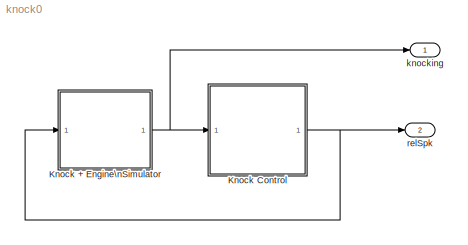
MODEL knock0
KIND model
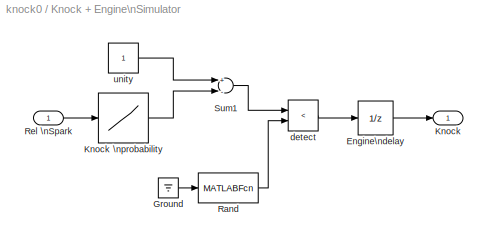
BLOCK [SubSystem] Knock + Engine\nSimulator
  FunctionWithSeparateData = off
  MaskHideContents = off
  MinAlgLoopOccurrences = off
  Opaque = off
  Ports = [1, 1]
  PropExecContextOutsideSubsystem = off
  RTWSystemCode = Auto
  RequestExecContextInheritance = off
  SID = 1
BLOCK [UnitDelay] Knock + Engine\nSimulator/Engine\ndelay
  SID = 3
BLOCK [Ground] Knock + Engine\nSimulator/Ground
  SID = 4
BLOCK [Outport] Knock + Engine\nSimulator/Knock
  IconDisplay = Port number
  SID = 10
BLOCK [Lookup] Knock + Engine\nSimulator/Knock \nprobability
  InputValues = knockGenTheta
  SID = 5
  SaturateOnIntegerOverflow = off
  Table = knockGenP
BLOCK [MATLABFcn] Knock + Engine\nSimulator/Rand
  MATLABFcn = rand(1)
  OutputDimensions = 1
  Ports = [1, 1]
  SID = 6
  SampleTime = [1 0]
BLOCK [Inport] Knock + Engine\nSimulator/Rel \nSpark
  IconDisplay = Port number
  SID = 2
BLOCK [Sum] Knock + Engine\nSimulator/Sum1
  InputSameDT = off
  Inputs = +-
  OutDataTypeStr = Inherit: Inherit via internal rule
  Ports = [2, 1]
  SID = 7
  SaturateOnIntegerOverflow = off
BLOCK [RelationalOperator] Knock + Engine\nSimulator/detect
  InputSameDT = off
  Operator = <
  OutDataTypeStr = boolean
  Ports = [2, 1]
  SID = 8
BLOCK [Constant] Knock + Engine\nSimulator/unity
  SID = 9
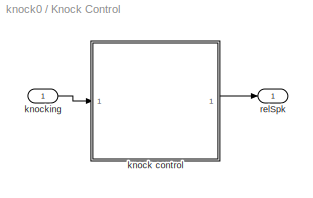
BLOCK [SubSystem] Knock Control
  FunctionWithSeparateData = off
  MaskHideContents = off
  MinAlgLoopOccurrences = off
  Opaque = off
  Ports = [1, 1]
  PropExecContextOutsideSubsystem = off
  RTWSystemCode = Auto
  RequestExecContextInheritance = off
  SID = 11
  TreatAsAtomicUnit = on
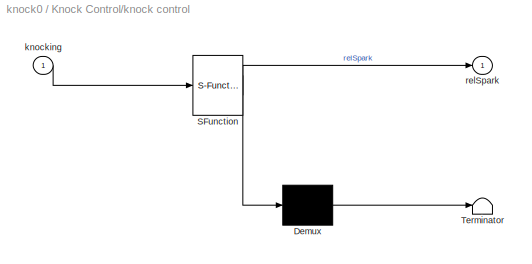
BLOCK [SubSystem] Knock Control/knock control
  ErrorFcn = Stateflow.Translate.translate
  FunctionWithSeparateData = off
  MaskHideContents = off
  MinAlgLoopOccurrences = off
  Opaque = off
  PermitHierarchicalResolution = ExplicitOnly
  Ports = [1, 1]
  PropExecContextOutsideSubsystem = off
  RTWSystemCode = Auto
  RequestExecContextInheritance = off
  SFBlockType = MATLAB Function
  SID = 13
  TreatAsAtomicUnit = on
BLOCK [Demux] Knock Control/knock control/ Demux 
  Outputs = 1
  Ports = [1, 1]
  SID = 13::7
BLOCK [S-Function] Knock Control/knock control/ SFunction 
  EnableBusSupport = on
  FunctionName = sf_sfun
  Parameters = advanceGain,initialSpark,retardGain,spkMax,spkMin
  PortCounts = [1 2]
  Ports = [1, 2]
  SID = 13::6
  Tag = Stateflow S-Function knock0 2
BLOCK [Terminator] Knock Control/knock control/ Terminator 
  SID = 13::8
BLOCK [Inport] Knock Control/knock control/knocking
  IconDisplay = Port number
  SID = 13::1
BLOCK [Outport] Knock Control/knock control/relSpark
  IconDisplay = Port number
  SID = 13::5
BLOCK [Inport] Knock Control/knocking
  IconDisplay = Port number
  SID = 12
BLOCK [Outport] Knock Control/relSpk
  IconDisplay = Port number
  SID = 14
BLOCK [Outport] knocking
  IconDisplay = Port number
  SID = 15
BLOCK [Outport] relSpk
  IconDisplay = Port number
  Port = 2
  SID = 16
LINE Knock + Engine\nSimulator/Engine\ndelay:1 -> Knock + Engine\nSimulator/Knock:1
LINE Knock + Engine\nSimulator/Ground:1 -> Knock + Engine\nSimulator/Rand:1
LINE Knock + Engine\nSimulator/Knock \nprobability:1 -> Knock + Engine\nSimulator/Sum1:2
LINE Knock + Engine\nSimulator/Rand:1 -> Knock + Engine\nSimulator/detect:2
LINE Knock + Engine\nSimulator/Rel \nSpark:1 -> Knock + Engine\nSimulator/Knock \nprobability:1
LINE Knock + Engine\nSimulator/Sum1:1 -> Knock + Engine\nSimulator/detect:1
LINE Knock + Engine\nSimulator/detect:1 -> Knock + Engine\nSimulator/Engine\ndelay:1
LINE Knock + Engine\nSimulator/unity:1 -> Knock + Engine\nSimulator/Sum1:1
NET Knock + Engine\nSimulator:1 -> Knock Control:1, knocking:1
LINE Knock Control/knock control/ Demux :1 -> Knock Control/knock control/ Terminator :1
LINE Knock Control/knock control/ SFunction :1 -> Knock Control/knock control/ Demux :1
LINE Knock Control/knock control/ SFunction :2 -> Knock Control/knock control/relSpark:1
LINE Knock Control/knock control/knocking:1 -> Knock Control/knock control/ SFunction :1
LINE Knock Control/knock control:1 -> Knock Control/relSpk:1
LINE Knock Control/knocking:1 -> Knock Control/knock control:1
NET Knock Control:1 -> Knock + Engine\nSimulator:1, relSpk:1
note: NET lines group one-source signal fan-out (src -> all destinations, sorted); 1:1 wires keep LINE
CHART Knock Control/knock control states=1 transitions=1
  STATE_LABEL 'eML_blk_kernel()'
